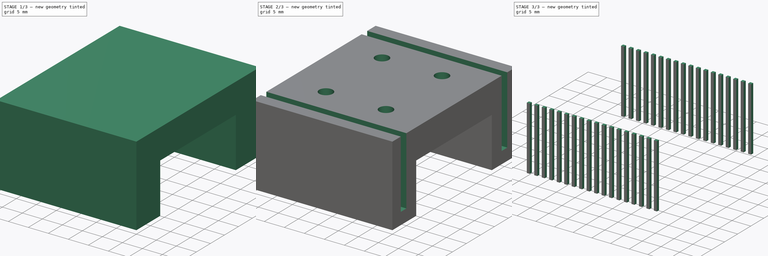
[diagram: build sequence overview — one tinted view per stage of 3, left to right]
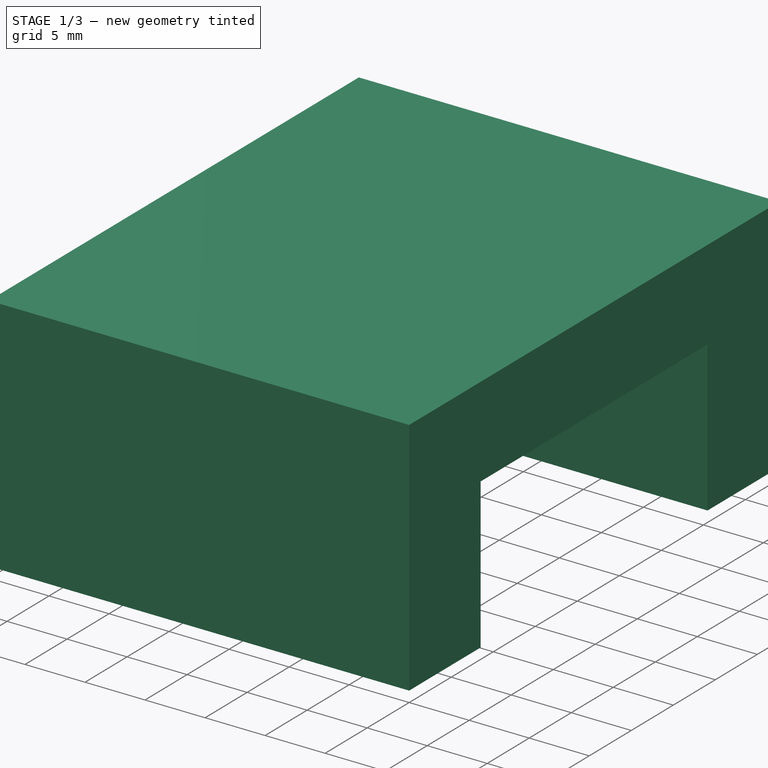
[diagram: stage 1 of 3 — iso view after this stage's code; geometry added in this stage tinted green]
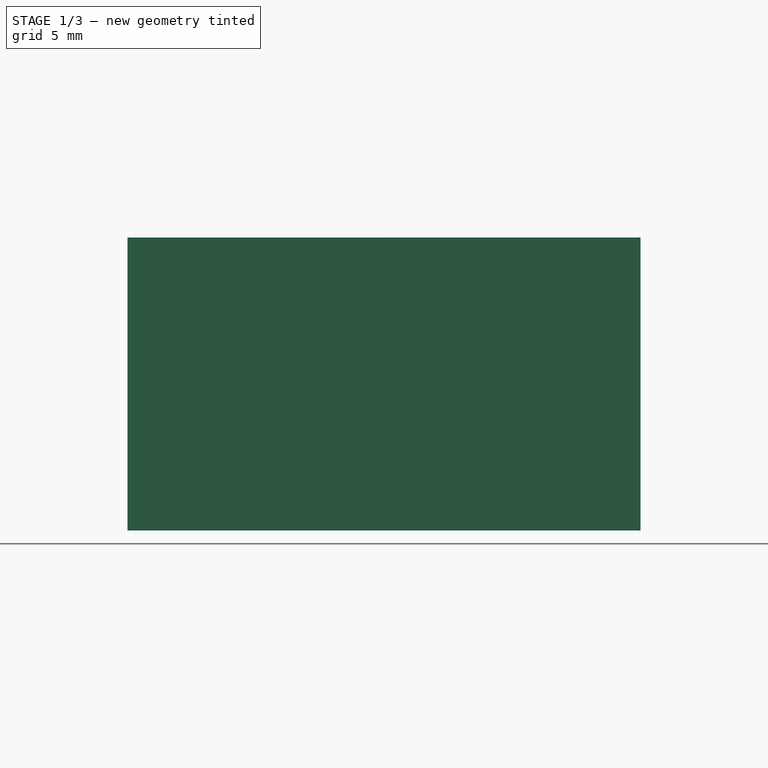
[diagram: stage 1 of 3 — front view after this stage's code; geometry added in this stage tinted green]
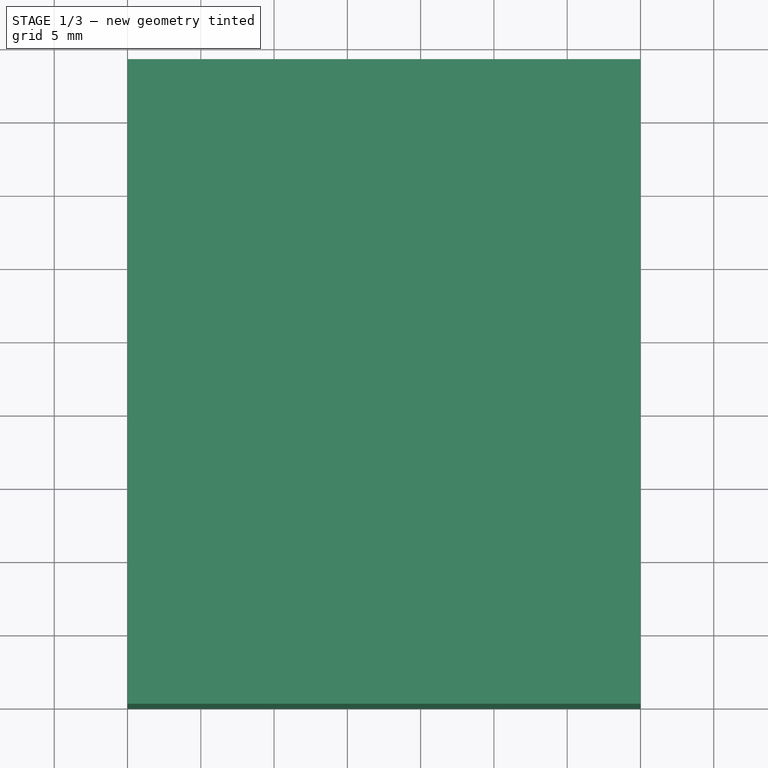
[diagram: stage 1 of 3 — top view after this stage's code; geometry added in this stage tinted green]
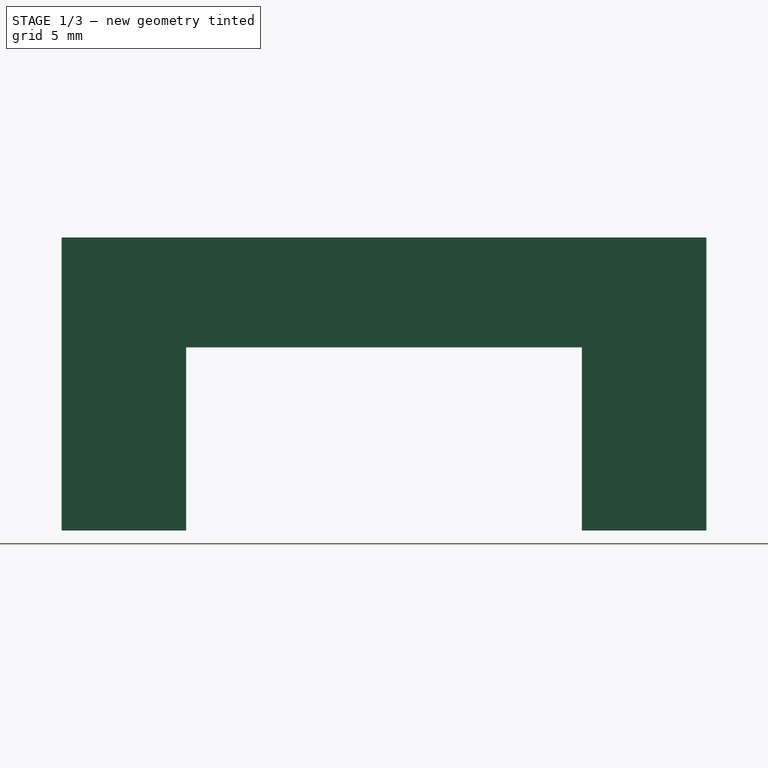
[diagram: stage 1 of 3 — right view after this stage's code; geometry added in this stage tinted green]
FCSTD DOCUMENT  (FreeCAD 0.15R4671 (Git))
Label: carriage
License: All rights reserved
LicenseURL: http://en.wikipedia.org/wiki/All_rights_reserved
objects: Sketcher::SketchObject×5, PartDesign::Pocket×3, Part::Extrusion×2, Part::FeaturePython×1
note: 14 computed .brp shape members not serialized (recipe doc carries the construction recipe); baked Part::Feature solids carry a one-line shape summary decoded from their .brp

FEATURE [Sketcher::SketchObject] Sketch
  sketch-geometry (4):
    g0: LineSegment StartX=0 StartY=0 StartZ=0 EndX=35 EndY=0 EndZ=0
    g1: LineSegment StartX=35 StartY=0 StartZ=0 EndX=35 EndY=44 EndZ=0
    g2: LineSegment StartX=35 StartY=44 StartZ=0 EndX=0 EndY=44 EndZ=0
    g3: LineSegment StartX=0 StartY=44 StartZ=0 EndX=0 EndY=0 EndZ=0
  constraints (10):
    c: Coincident(g0,g1)
    c: Coincident(g1,g2)
    c: Coincident(g2,g3)
    c: Coincident(g3,g0)
    c: Horizontal(g0)
    c: Horizontal(g2)
    c: Vertical(g1)
    c: Vertical(g3)
    c: DistanceX(g-1,g0) = 35
    c: DistanceY(g-1,g2) = 44
FEATURE [Part::Extrusion] Extrude
  Base = -> Sketch
  Dir = (0,0,20)
  Solid = true
FEATURE [Sketcher::SketchObject] Sketch001
  ExternalGeometry = -> [Extrude]
  Placement = pos=(0,0,0) rot=(1,0,0;3.14159rad)
  Support = -> Extrude [Face5]
  sketch-geometry (4):
    g0: LineSegment StartX=0 StartY=-8.5 StartZ=0 EndX=35 EndY=-8.5 EndZ=0
    g1: LineSegment StartX=35 StartY=-8.5 StartZ=0 EndX=35 EndY=-35.5 EndZ=0
    g2: LineSegment StartX=35 StartY=-35.5 StartZ=0 EndX=0 EndY=-35.5 EndZ=0
    g3: LineSegment StartX=0 StartY=-35.5 StartZ=0 EndX=0 EndY=-8.5 EndZ=0
  constraints (12):
    c: Coincident(g0,g1)
    c: Coincident(g1,g2)
    c: Coincident(g2,g3)
    c: Coincident(g3,g0)
    c: Horizontal(g0)
    c: Horizontal(g2)
    c: Vertical(g1)
    c: Vertical(g3)
    c: PointOnObject(g0,g-2)
    c: PointOnObject(g1,g-3)
    c: DistanceY(g2,g0) = 27
    c: DistanceY(g-1,g0) = -8.5
FEATURE [PartDesign::Pocket] Pocket
  Length = 12.5
  Sketch = -> Sketch001
  Type = 0
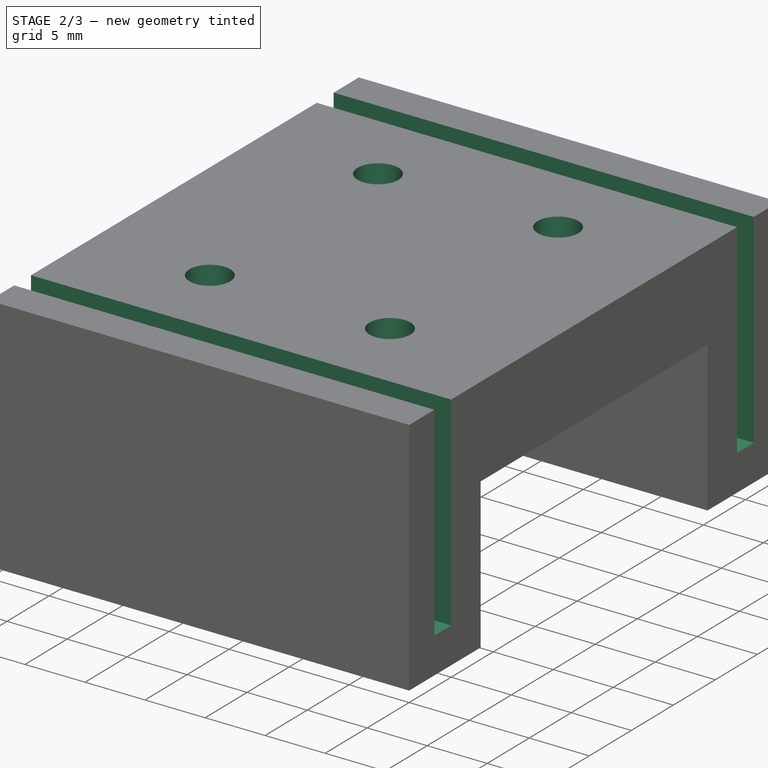
[diagram: stage 2 of 3 — iso view after this stage's code; geometry added in this stage tinted green]
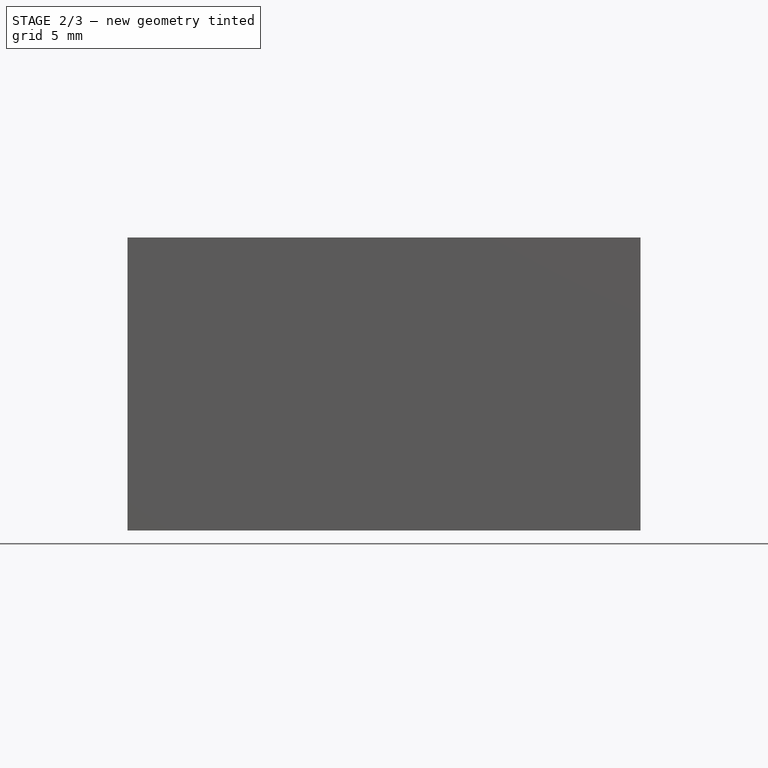
[diagram: stage 2 of 3 — front view after this stage's code; geometry added in this stage tinted green]
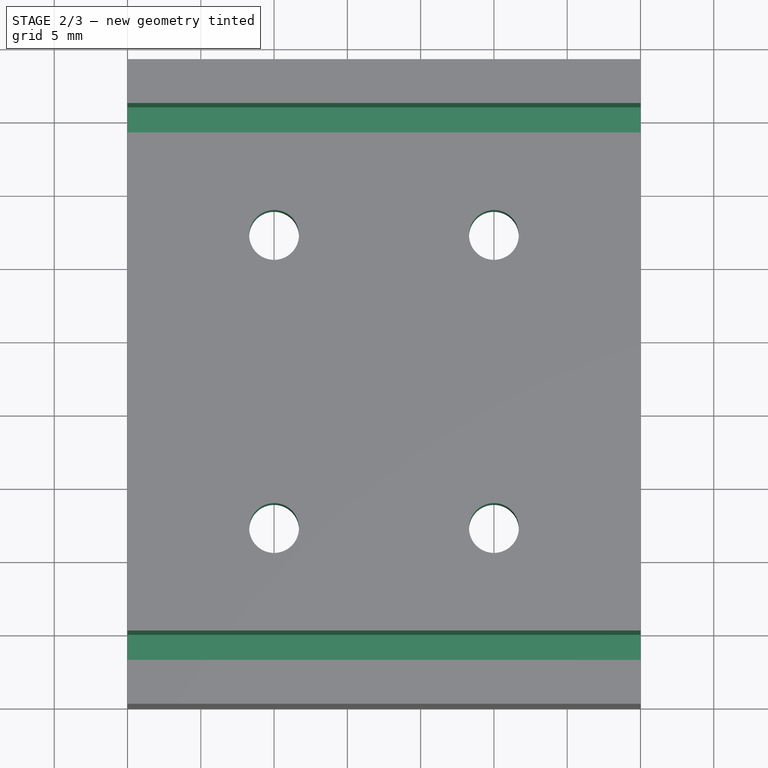
[diagram: stage 2 of 3 — top view after this stage's code; geometry added in this stage tinted green]
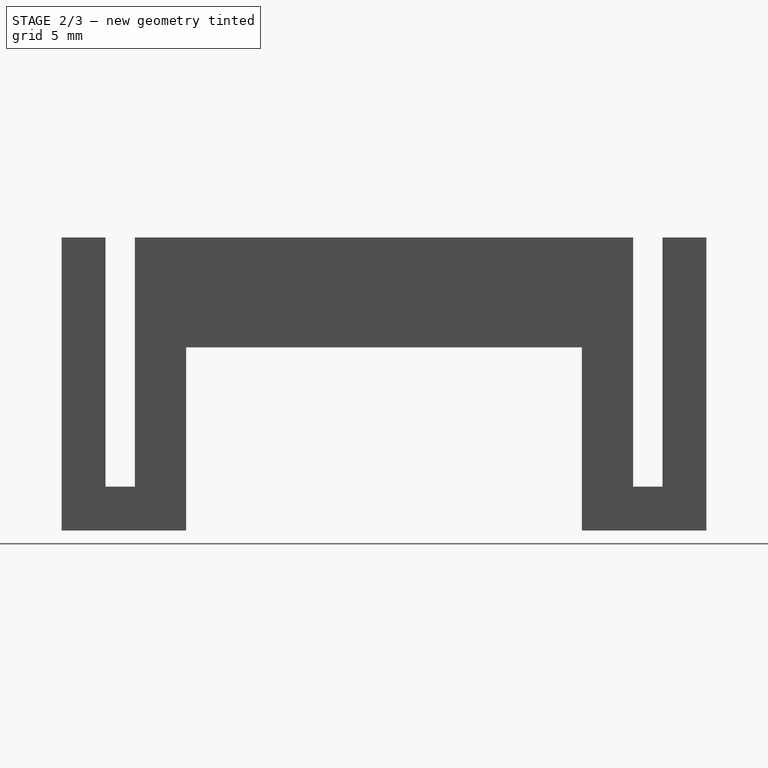
[diagram: stage 2 of 3 — right view after this stage's code; geometry added in this stage tinted green]
FEATURE [Sketcher::SketchObject] Sketch002
  Placement = pos=(0,0,20) rot=(0,0,1;0rad)
  Support = -> Pocket [Face5]
  sketch-geometry (4):
    g0: Circle CenterX=10 CenterY=32 CenterZ=0 NormalX=0 NormalY=0 NormalZ=1 Radius=1.7
    g1: Circle CenterX=25 CenterY=32 CenterZ=0 NormalX=0 NormalY=0 NormalZ=1 Radius=1.7
    g2: Circle CenterX=10 CenterY=12 CenterZ=0 NormalX=0 NormalY=0 NormalZ=1 Radius=1.7
    g3: Circle CenterX=25 CenterY=12 CenterZ=0 NormalX=0 NormalY=0 NormalZ=1 Radius=1.7
  constraints (12):
    c: DistanceX(g0,g1) = 15
    c: DistanceX(g2,g3) = 15
    c: DistanceY(g2,g0) = 20
    c: DistanceY(g3,g1) = 20
    c: DistanceY(g-1,g2) = 12
    c: DistanceY(g-1,g3) = 12
    c: DistanceX(g-1,g2) = 10
    c: DistanceX(g-1,g0) = 10
    c: Radius(g0) = 1.7
    c: Radius(g2) = 1.7
    c: Radius(g3) = 1.7
    c: Radius(g1) = 1.7
FEATURE [PartDesign::Pocket] Pocket001
  Length = 5
  Sketch = -> Sketch002
  Type = 1
FEATURE [Sketcher::SketchObject] Sketch003
  ExternalGeometry = -> [Pocket001]
  Placement = pos=(0,0,20) rot=(0,0,1;0rad)
  Support = -> Pocket001 [Face5]
  sketch-geometry (8):
    g0: LineSegment StartX=0 StartY=41 StartZ=0 EndX=35 EndY=41 EndZ=0
    g1: LineSegment StartX=35 StartY=41 StartZ=0 EndX=35 EndY=39 EndZ=0
    g2: LineSegment StartX=35 StartY=39 StartZ=0 EndX=0 EndY=39 EndZ=0
    g3: LineSegment StartX=0 StartY=39 StartZ=0 EndX=0 EndY=41 EndZ=0
    g4: LineSegment StartX=0 StartY=5 StartZ=0 EndX=35 EndY=5 EndZ=0
    g5: LineSegment StartX=35 StartY=5 StartZ=0 EndX=35 EndY=3 EndZ=0
    g6: LineSegment StartX=35 StartY=3 StartZ=0 EndX=0 EndY=3 EndZ=0
    g7: LineSegment StartX=0 StartY=3 StartZ=0 EndX=0 EndY=5 EndZ=0
  constraints (24):
    c: Coincident(g0,g1)
    c: Coincident(g1,g2)
    c: Coincident(g2,g3)
    c: Coincident(g3,g0)
    c: Horizontal(g0)
    c: Horizontal(g2)
    c: Vertical(g1)
    c: Vertical(g3)
    c: PointOnObject(g0,g-5)
    c: PointOnObject(g1,g-4)
    c: Coincident(g4,g5)
    c: Coincident(g5,g6)
    c: Coincident(g6,g7)
    c: Coincident(g7,g4)
    c: Horizontal(g4)
    c: Horizontal(g6)
    c: Vertical(g5)
    c: Vertical(g7)
    c: PointOnObject(g4,g-5)
    c: PointOnObject(g5,g-4)
    c: DistanceY(g0,g-5) = 3
    c: DistanceY(g-1,g6) = 3
    c: DistanceY(g2,g0) = 2
    c: DistanceY(g4,g6) = -2
FEATURE [PartDesign::Pocket] Pocket002
  Length = 17
  Sketch = -> Sketch003
  Type = 0
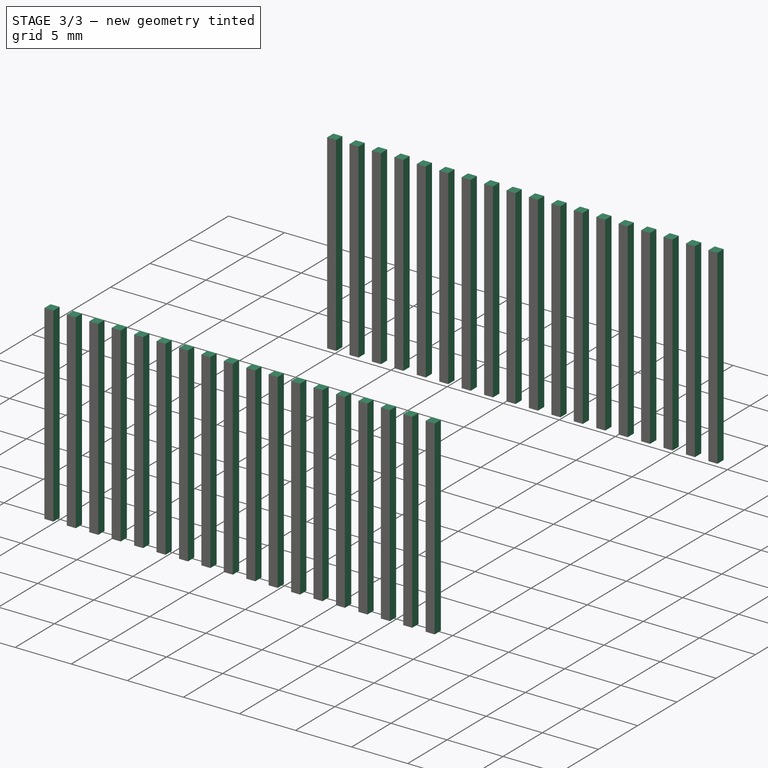
[diagram: stage 3 of 3 — iso view after this stage's code; geometry added in this stage tinted green]
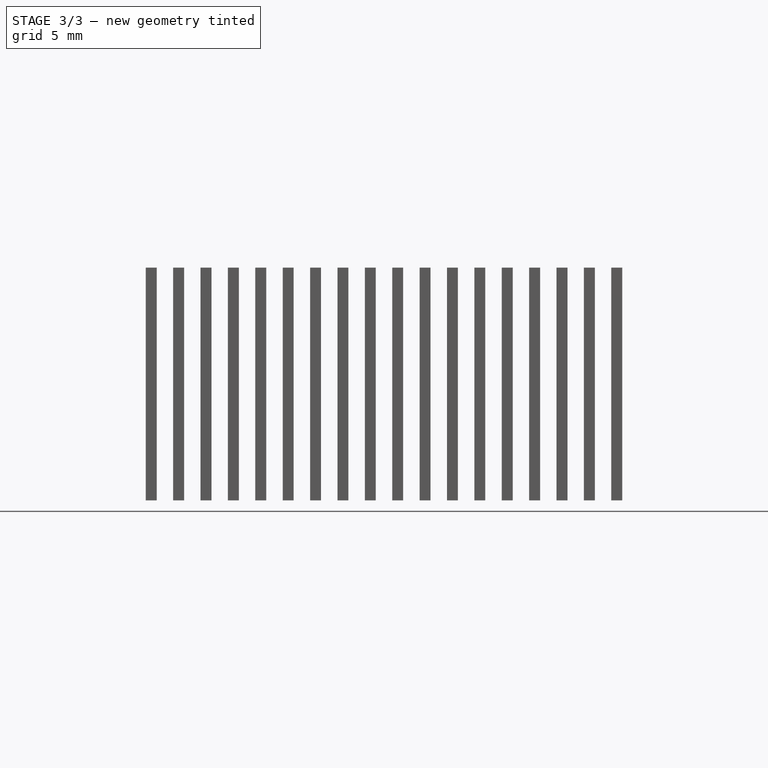
[diagram: stage 3 of 3 — front view after this stage's code; geometry added in this stage tinted green]
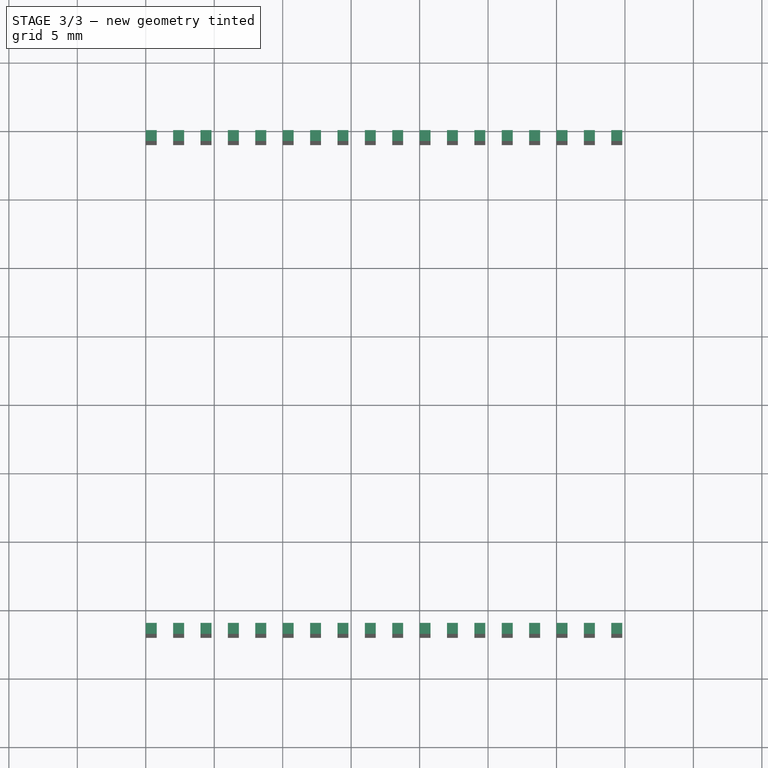
[diagram: stage 3 of 3 — top view after this stage's code; geometry added in this stage tinted green]
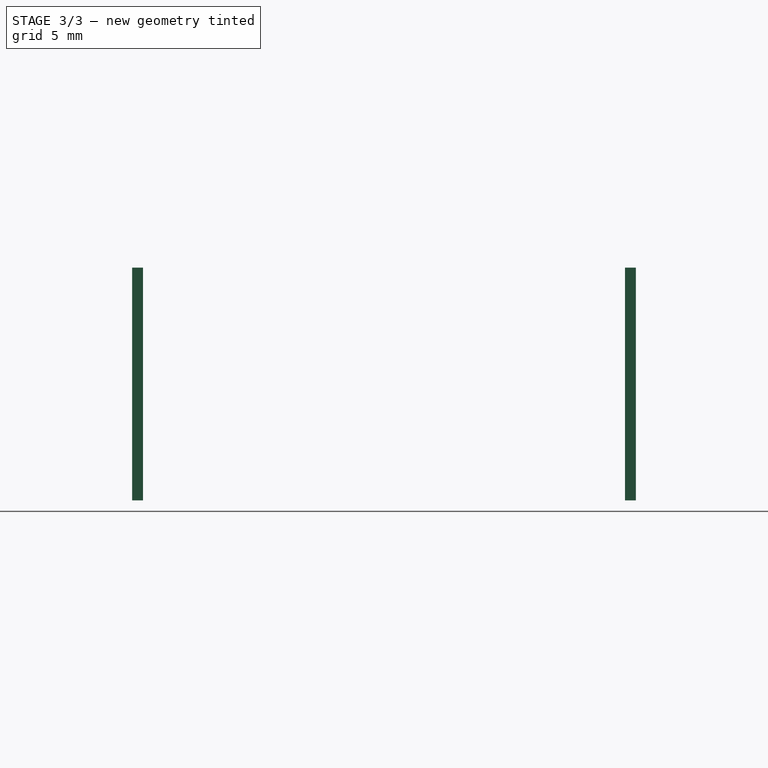
[diagram: stage 3 of 3 — right view after this stage's code; geometry added in this stage tinted green]
FEATURE [Sketcher::SketchObject] Sketch004
  ExternalGeometry = -> [Pocket002]
  Placement = pos=(0,0,3) rot=(0,0,1;0rad)
  Support = -> Pocket002 [Face11]
  sketch-geometry (4):
    g0: LineSegment StartX=0 StartY=3 StartZ=0 EndX=0.8 EndY=3 EndZ=0
    g1: LineSegment StartX=0.8 StartY=3 StartZ=0 EndX=0.8 EndY=3.8 EndZ=0
    g2: LineSegment StartX=0.8 StartY=3.8 StartZ=0 EndX=0 EndY=3.8 EndZ=0
    g3: LineSegment StartX=0 StartY=3.8 StartZ=0 EndX=0 EndY=3 EndZ=0
  constraints (11):
    c: Coincident(g0,g1)
    c: Coincident(g1,g2)
    c: Coincident(g2,g3)
    c: Coincident(g3,g0)
    c: Horizontal(g0)
    c: Horizontal(g2)
    c: Vertical(g1)
    c: Vertical(g3)
    c: Coincident(g0,g-3)
    c: DistanceY(g2,g0) = -0.8
    c: DistanceX(g1,g2) = -0.8
FEATURE [Part::Extrusion] Extrude001
  Base = -> Sketch004
  Dir = (0,0,17)
  Solid = true
FEATURE [Part::FeaturePython] Array  # Draft array (typed FeaturePython)
  Angle = 360
  ArrayType = 0
  Axis = (0,0,1)
  Base = -> Extrude001
  Center = (0,0,0)
  Fuse = false
  IntervalAxis = (0,0,0)
  IntervalX = (2,0,0)
  IntervalY = (0,36,0)
  IntervalZ = (0,0,0)
  NumberPolar = 1
  NumberX = 18
  NumberY = 2
  NumberZ = 1
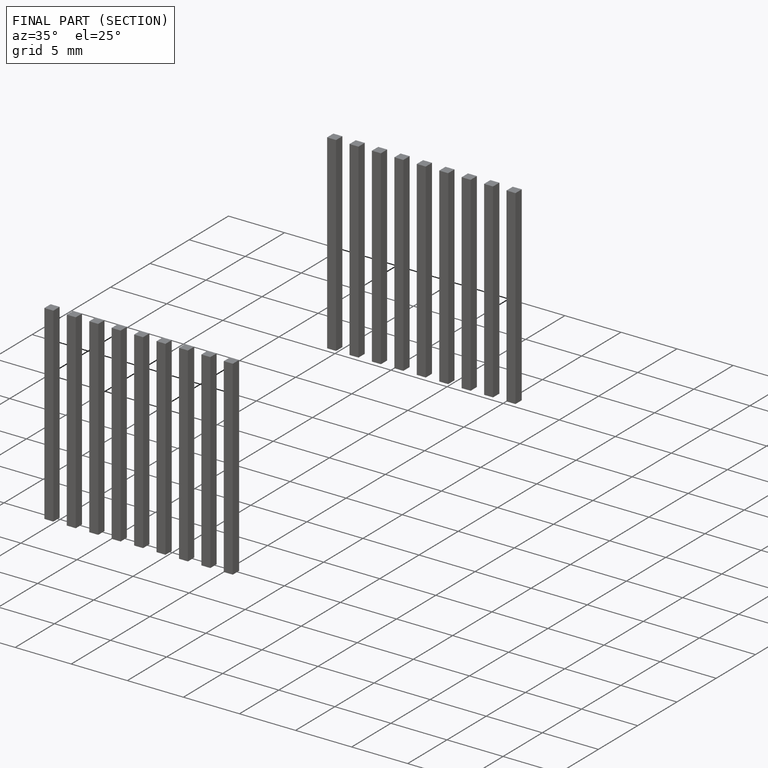
[diagram: finished part — half-section view (interior)]
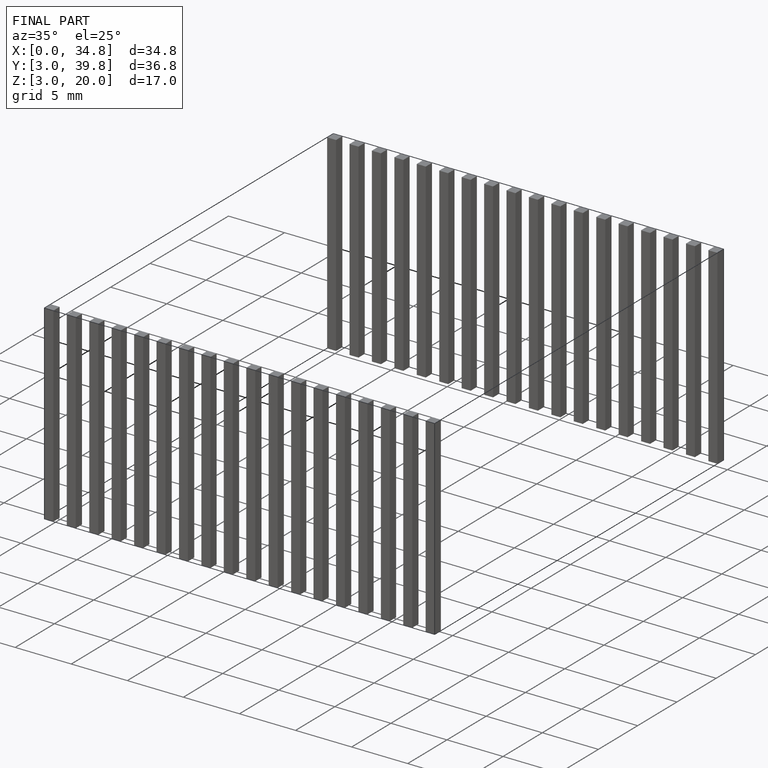
[diagram: finished part — iso view with bounding-box wireframe]
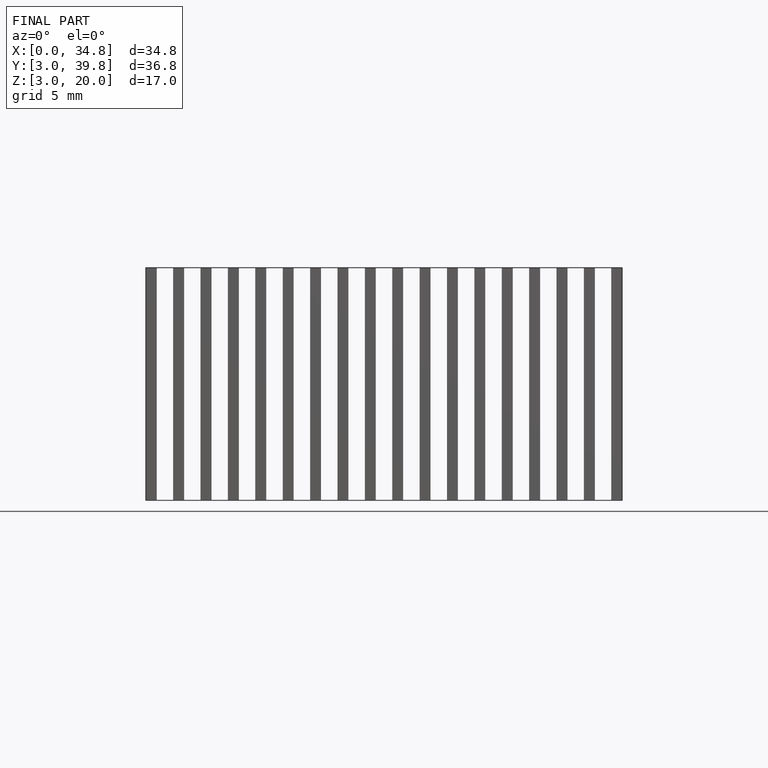
[diagram: finished part — front view with bounding-box wireframe]
